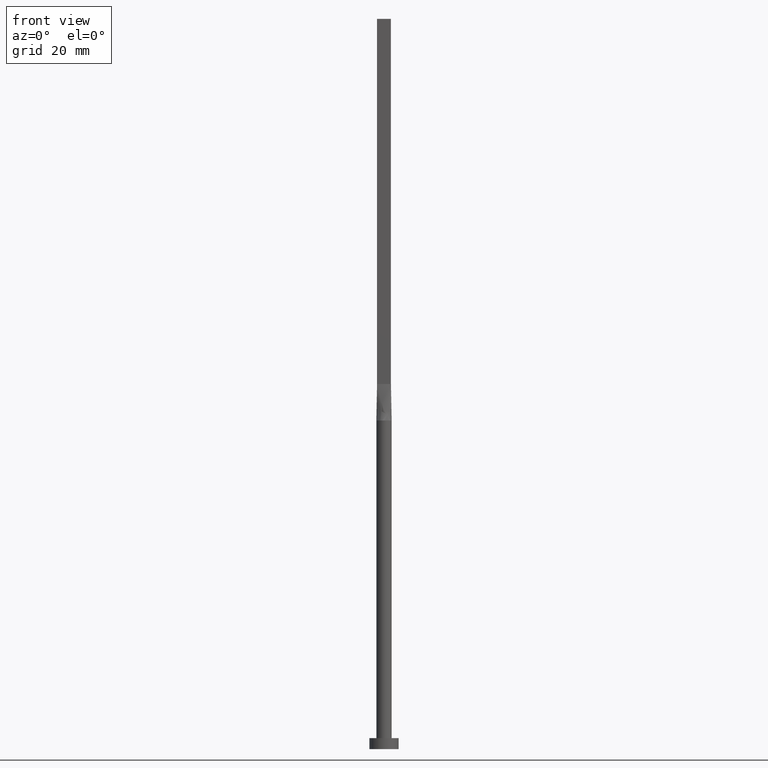
[diagram: clean part render]
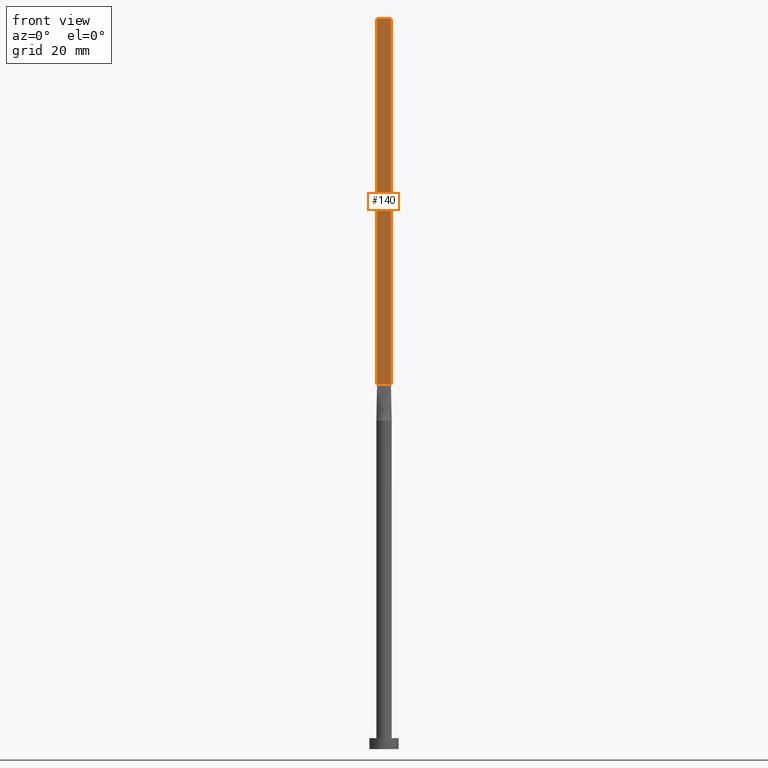
[diagram: same view with one face highlighted and labeled with its STEP entity id]
A machine part, front view. The second image highlights one B-rep face of the part: STEP entity #140.
In plain terms, the highlighted planar face has unit normal (0, 1, -0).
Its self-contained STEP definition (entity closure, byte-faithful):
#1 = EDGE_CURVE ( 'NONE', #110, #11, #487, .T. ) ;
#11 = VERTEX_POINT ( 'NONE', #492 ) ;
#39 = VECTOR ( 'NONE', #257, 1000.000000000000000 ) ;
#51 = CARTESIAN_POINT ( 'NONE',  ( -1.899999999999999911, -0.3999999999999995781, 200.0000000000000000 ) ) ;
#79 = CARTESIAN_POINT ( 'NONE',  ( -1.899999999999999911, -0.3999999999999995781, 99.99999999999998579 ) ) ;
#110 = VERTEX_POINT ( 'NONE', #409 ) ;
#140 = ADVANCED_FACE ( 'NONE', ( #496 ), #418, .F. ) ;
#159 = EDGE_LOOP ( 'NONE', ( #196, #179, #291, #488 ) ) ;
#164 = LINE ( 'NONE', #241, #414 ) ;
#179 = ORIENTED_EDGE ( 'NONE', *, *, #201, .F. ) ;
#196 = ORIENTED_EDGE ( 'NONE', *, *, #1, .T. ) ;
#201 = EDGE_CURVE ( 'NONE', #419, #11, #452, .T. ) ;
#231 = CARTESIAN_POINT ( 'NONE',  ( 1.899999999999999023, -0.3999999999999998002, 200.0000000000000000 ) ) ;
#236 = DIRECTION ( 'NONE',  ( -0.000000000000000000, -0.000000000000000000, -1.000000000000000000 ) ) ;
#241 = CARTESIAN_POINT ( 'NONE',  ( -1.899999999999999911, -0.3999999999999995781, 200.0000000000000000 ) ) ;
#257 = DIRECTION ( 'NONE',  ( 1.000000000000000000, -5.706327223607918787E-17, 0.000000000000000000 ) ) ;
#264 = CARTESIAN_POINT ( 'NONE',  ( -1.899999999999999911, -0.3999999999999995781, 200.0000000000000000 ) ) ;
#268 = VECTOR ( 'NONE', #236, 1000.000000000000000 ) ;
#285 = EDGE_CURVE ( 'NONE', #320, #419, #455, .T. ) ;
#291 = ORIENTED_EDGE ( 'NONE', *, *, #285, .F. ) ;
#315 = DIRECTION ( 'NONE',  ( -1.000000000000000000, 5.706327223607920020E-17, 0.000000000000000000 ) ) ;
#320 = VERTEX_POINT ( 'NONE', #451 ) ;
#333 = CARTESIAN_POINT ( 'NONE',  ( 1.899999999999999023, -0.3999999999999998002, 200.0000000000000000 ) ) ;
#409 = CARTESIAN_POINT ( 'NONE',  ( -1.899999999999999911, -0.3999999999999995781, 99.99999999999998579 ) ) ;
#414 = VECTOR ( 'NONE', #472, 1000.000000000000000 ) ;
#416 = DIRECTION ( 'NONE',  ( 1.000000000000000000, -5.706327223607920020E-17, 0.000000000000000000 ) ) ;
#418 = PLANE ( 'NONE',  #493 ) ;
#419 = VERTEX_POINT ( 'NONE', #333 ) ;
#451 = CARTESIAN_POINT ( 'NONE',  ( -1.899999999999999911, -0.3999999999999995781, 200.0000000000000000 ) ) ;
#452 = LINE ( 'NONE', #231, #268 ) ;
#454 = EDGE_CURVE ( 'NONE', #320, #110, #164, .T. ) ;
#455 = LINE ( 'NONE', #51, #471 ) ;
#471 = VECTOR ( 'NONE', #416, 1000.000000000000000 ) ;
#472 = DIRECTION ( 'NONE',  ( -0.000000000000000000, -0.000000000000000000, -1.000000000000000000 ) ) ;
#487 = LINE ( 'NONE', #79, #39 ) ;
#488 = ORIENTED_EDGE ( 'NONE', *, *, #454, .T. ) ;
#492 = CARTESIAN_POINT ( 'NONE',  ( 1.899999999999999023, -0.3999999999999998002, 99.99999999999998579 ) ) ;
#493 = AXIS2_PLACEMENT_3D ( 'NONE', #264, #536, #315 ) ;
#496 = FACE_OUTER_BOUND ( 'NONE', #159, .T. ) ;
#536 = DIRECTION ( 'NONE',  ( 5.706327223607920020E-17, 1.000000000000000000, -0.000000000000000000 ) ) ;